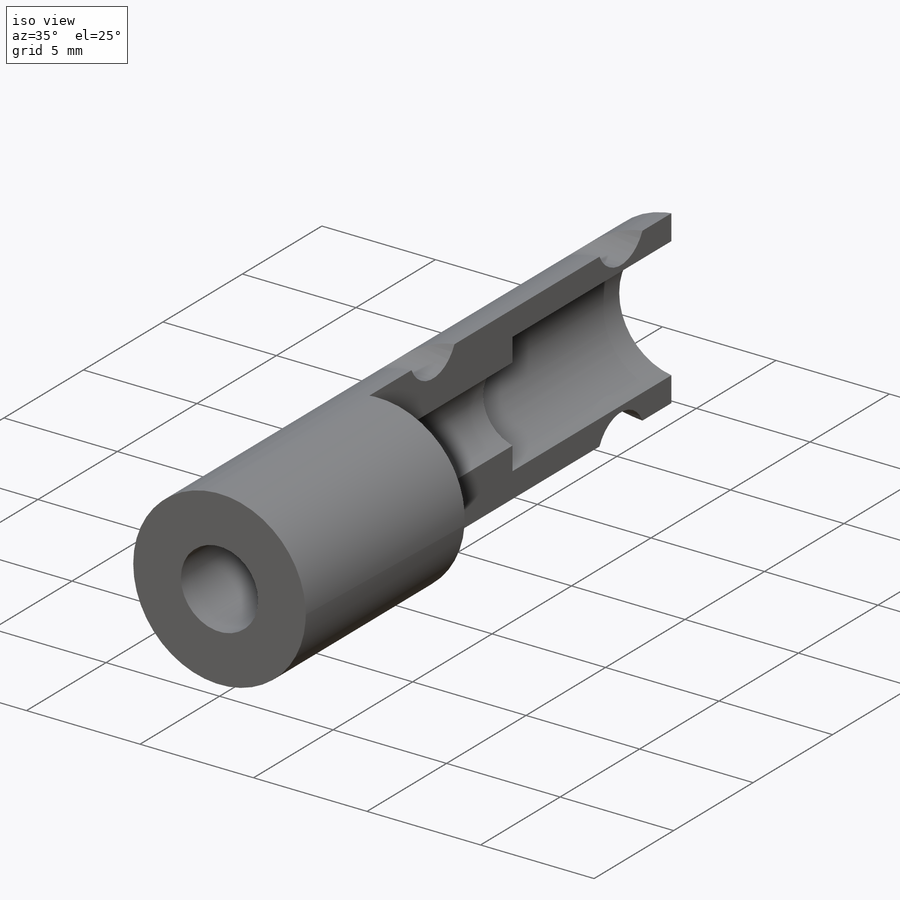
[diagram: iso view]
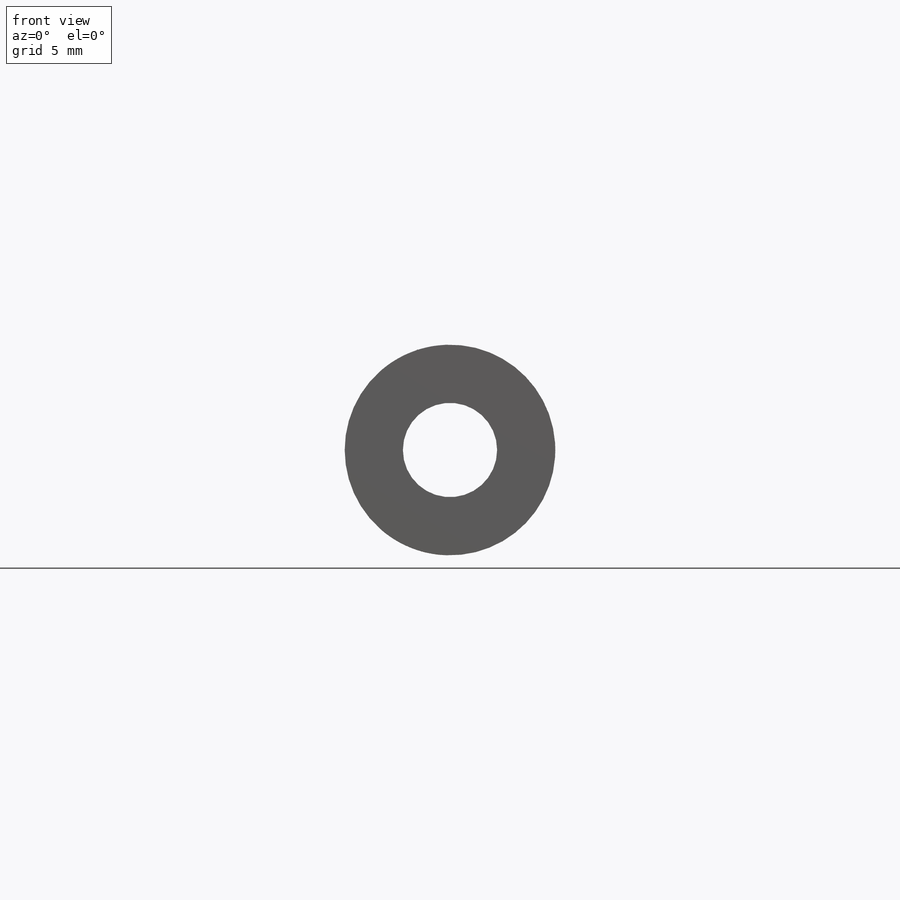
[diagram: front view]
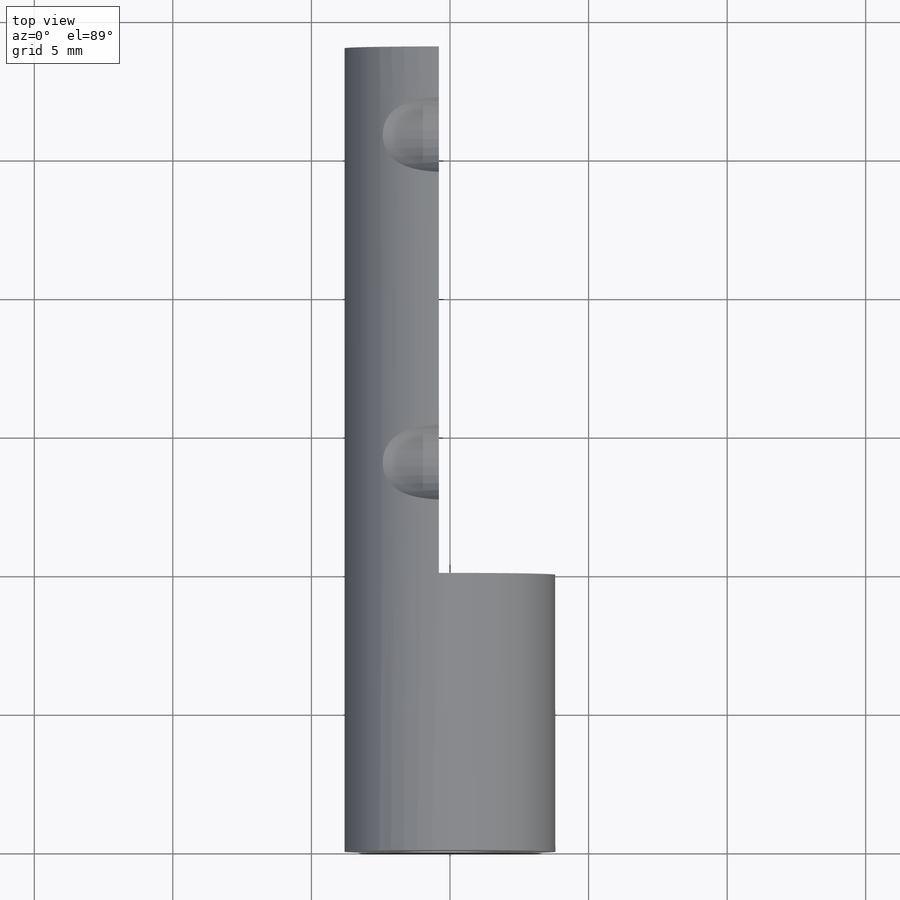
[diagram: top view]
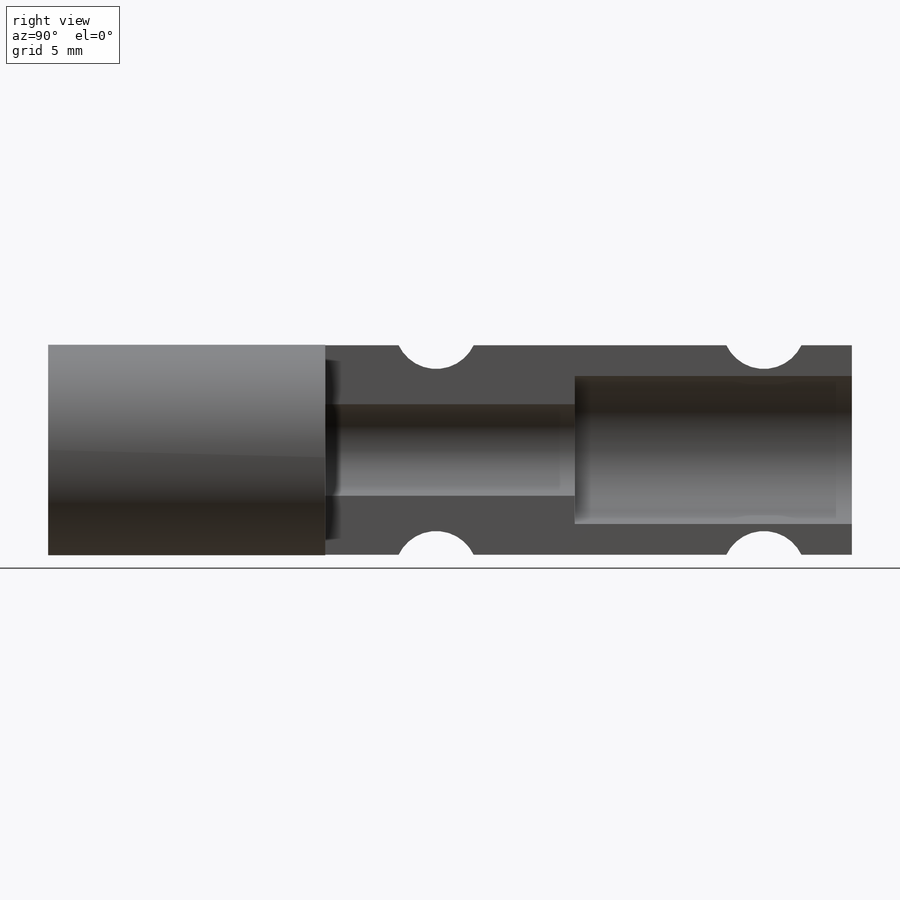
[diagram: right view]
SOLIDWORKS PART (.sldprt)
format: sldprt  version: not decoded by parser v0  size: 240,640 bytes
history: native  units: mm
features: sketch x5, extrude x3, cut_extrude x2, material x1 (+16 scaffold rows collapsed)
feature tree (27):
  scaffold x16  (default folders/planes/origin — collapsed)
  material  "Material <not specified>"
  sketch  "Sketch1"  dims[D1=1.5875mm]
  extrude  "Extrude1"  Depth=10mm
  sketch  "Sketch2"
  extrude  "Extrude2"  Depth=9mm
  sketch  "Sketch3"  dims[D1=~2.245064mm]
  extrude  "Extrude3"  Depth=10mm
  sketch  "Sketch4"  dims[D5=~2.077596mm D1=3.175mm D2=4.0mm D3=4.425mm D4=4.425mm]
  cut_extrude  "Extrude4"  Depth=17mm
  sketch  "Sketch5"  dims[D1=0.4mm]
  cut_extrude  "Extrude5"  [1 undecoded]
decode coverage: 8 of 10 modeling features carry decoded parameters
note: ~ marks probable driven/reference dimensions
note: 1 parameter value undecoded
note: suppression state not decoded; provenance and decode notes live in map.json
